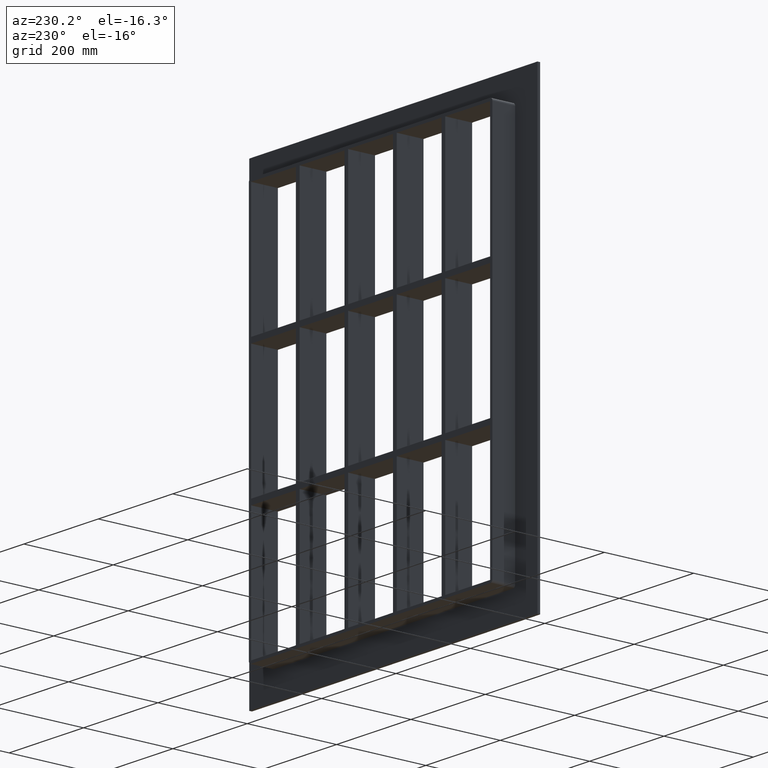
[diagram: clean part render]
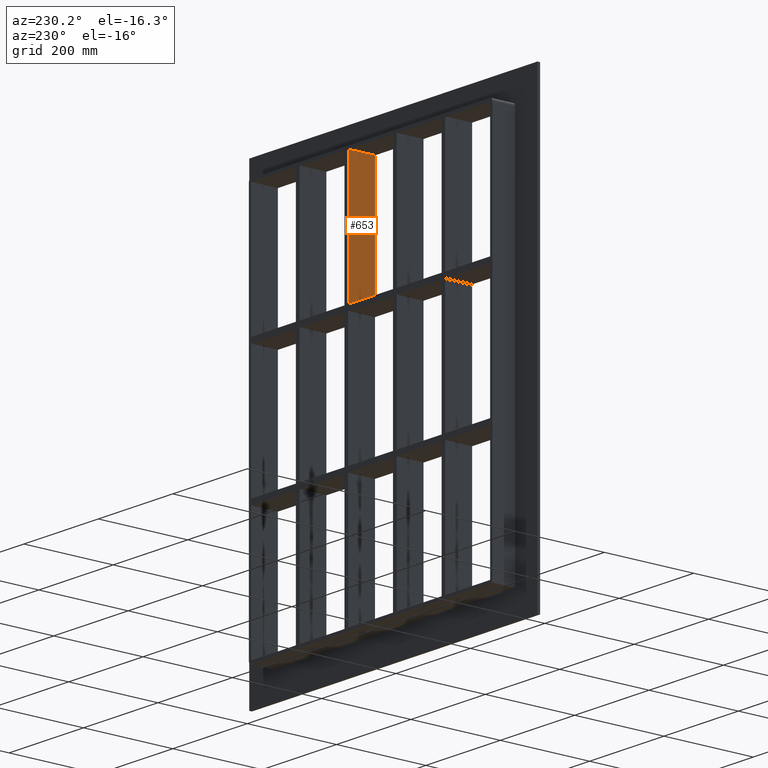
[diagram: same view with one face highlighted and labeled with its STEP entity id]
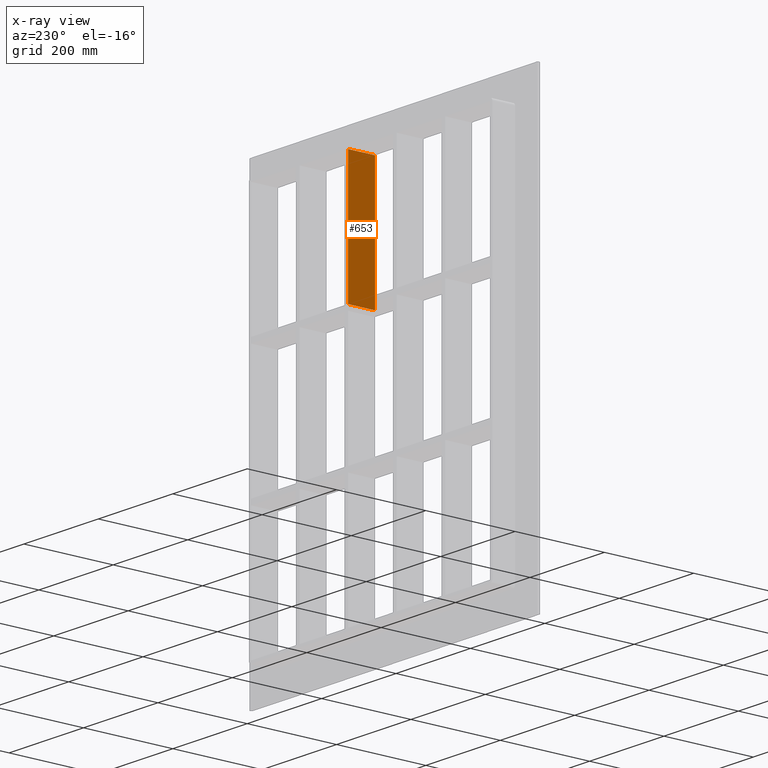
[diagram: x-ray of the same camera — body ghosted, the highlighted face saturated]
A machine part, auxiliary view. The second image highlights one B-rep face of the part: STEP entity #653.
The next image is the same camera in x-ray: the body ghosted, the highlighted face saturated — about 0% of this face is hidden behind the body in this view.
In plain terms, the highlighted planar face has unit normal (-1, 0, 0).
Its self-contained STEP definition (entity closure, byte-faithful):
#393=CARTESIAN_POINT('',(60.249999999998707,57.0,150.99999999999994));
#394=VERTEX_POINT('',#393);
#395=CARTESIAN_POINT('',(60.249999999998707,-3.0,150.99999999999994));
#396=VERTEX_POINT('',#395);
#397=CARTESIAN_POINT('',(60.249999999998742,57.0,150.99999999999994));
#398=DIRECTION('',(0.0,-1.0,0.0));
#399=VECTOR('',#398,60.0);
#400=LINE('',#397,#399);
#401=EDGE_CURVE('',#394,#396,#400,.T.);
#623=CARTESIAN_POINT('',(60.249999999998778,-3.0,-429.00000000000006));
#624=DIRECTION('',(-1.0,0.0,0.0));
#625=DIRECTION('',(0.0,0.0,1.0));
#626=AXIS2_PLACEMENT_3D('',#623,#624,#625);
#627=PLANE('',#626);
#628=ORIENTED_EDGE('',*,*,#401,.T.);
#629=CARTESIAN_POINT('',(60.249999999998707,-3.0,429.00000000000006));
#630=VERTEX_POINT('',#629);
#631=CARTESIAN_POINT('',(60.249999999998728,-3.0,150.99999999999994));
#632=DIRECTION('',(0.0,0.0,1.0));
#633=VECTOR('',#632,278.00000000000011);
#634=LINE('',#631,#633);
#635=EDGE_CURVE('',#396,#630,#634,.T.);
#636=ORIENTED_EDGE('',*,*,#635,.T.);
#637=CARTESIAN_POINT('',(60.249999999998707,57.0,429.00000000000006));
#638=VERTEX_POINT('',#637);
#639=CARTESIAN_POINT('',(60.249999999998707,57.000000000000007,429.00000000000006));
#640=DIRECTION('',(0.0,-1.0,0.0));
#641=VECTOR('',#640,60.000000000000007);
#642=LINE('',#639,#641);
#643=EDGE_CURVE('',#638,#630,#642,.T.);
#644=ORIENTED_EDGE('',*,*,#643,.F.);
#645=CARTESIAN_POINT('',(60.249999999998728,57.0,150.99999999999994));
#646=DIRECTION('',(0.0,0.0,1.0));
#647=VECTOR('',#646,278.00000000000011);
#648=LINE('',#645,#647);
#649=EDGE_CURVE('',#394,#638,#648,.T.);
#650=ORIENTED_EDGE('',*,*,#649,.F.);
#651=EDGE_LOOP('',(#628,#636,#644,#650));
#652=FACE_OUTER_BOUND('',#651,.T.);
#653=ADVANCED_FACE('',(#652),#627,.T.);